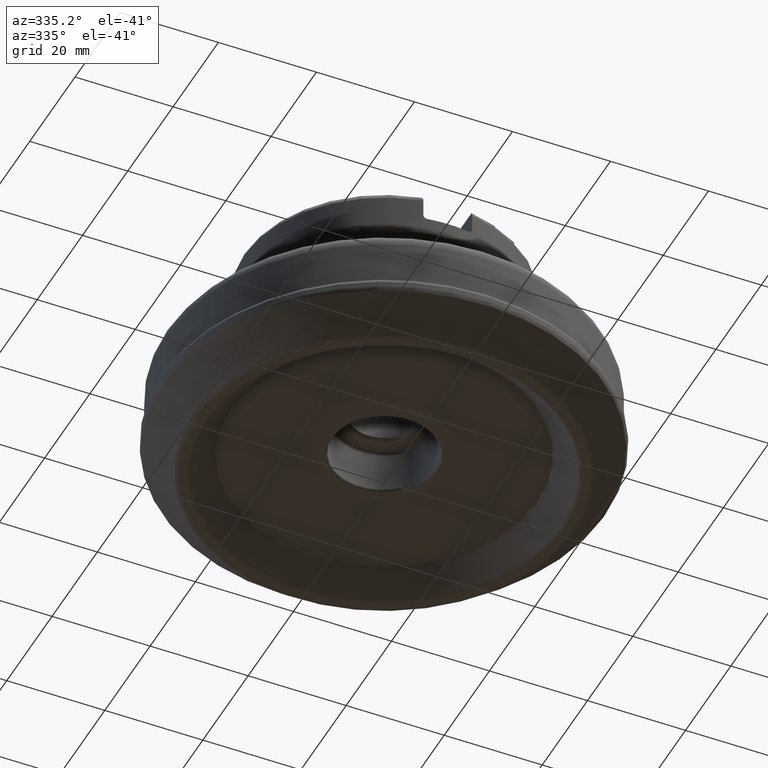
[diagram: clean part render]
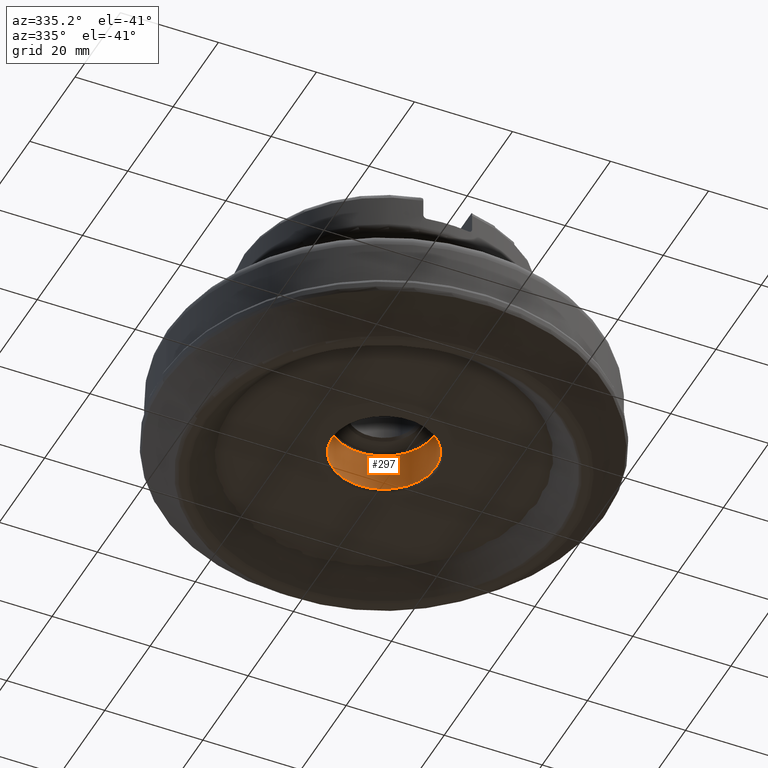
[diagram: same view with one face highlighted and labeled with its STEP entity id]
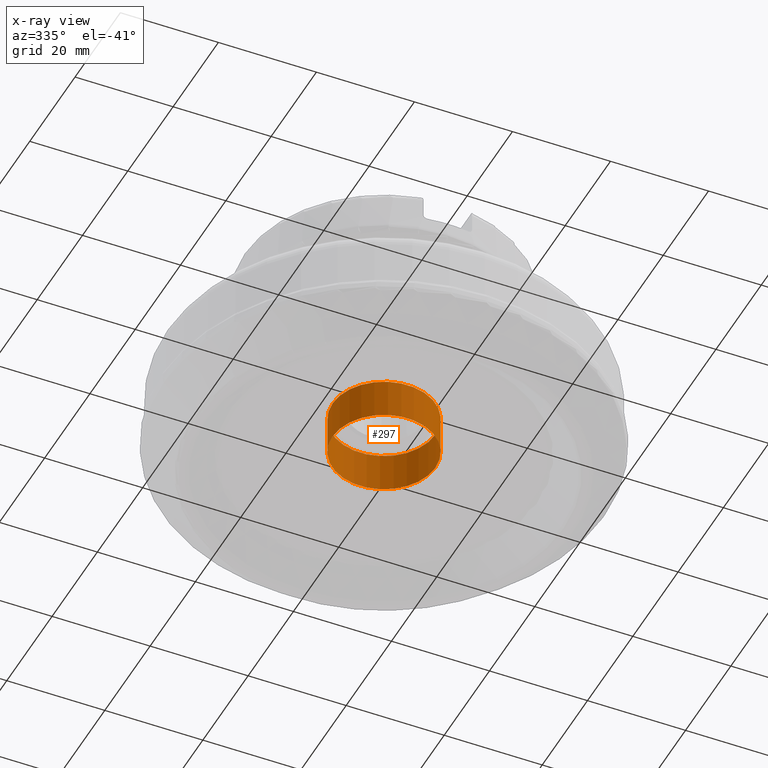
[diagram: x-ray of the same camera — body ghosted, the highlighted face saturated]
A machine part, auxiliary view. The second image highlights one B-rep face of the part: STEP entity #297.
The next image is the same camera in x-ray: the body ghosted, the highlighted face saturated — about 0% of this face is hidden behind the body in this view.
In plain terms, the highlighted cylindrical surface (bore or boss wall) has radius 10.5029 mm, axis along (-0, 0, -1).
Its self-contained STEP definition (entity closure, byte-faithful):
#204=CYLINDRICAL_SURFACE('',#1131,10.5029);
#297=ADVANCED_FACE('',(#381,#382),#204,.F.);
#381=FACE_BOUND('',#481,.T.);
#382=FACE_BOUND('',#482,.T.);
#481=EDGE_LOOP('',(#643));
#482=EDGE_LOOP('',(#644));
#643=ORIENTED_EDGE('',*,*,#931,.T.);
#644=ORIENTED_EDGE('',*,*,#932,.T.);
#837=VERTEX_POINT('',#1976);
#838=VERTEX_POINT('',#1978);
#931=EDGE_CURVE('',#837,#837,#1001,.T.);
#932=EDGE_CURVE('',#838,#838,#1002,.T.);
#1001=CIRCLE('',#1129,10.5029);
#1002=CIRCLE('',#1130,10.5029);
#1129=AXIS2_PLACEMENT_3D('',#1975,#1298,#1299);
#1130=AXIS2_PLACEMENT_3D('',#1977,#1300,#1301);
#1131=AXIS2_PLACEMENT_3D('',#1979,#1302,#1303);
#1298=DIRECTION('',(-1.17145536458252E-15,0.,-1.));
#1299=DIRECTION('',(-1.,0.,1.15616299610942E-15));
#1300=DIRECTION('',(1.17145536458252E-15,0.,1.));
#1301=DIRECTION('',(-1.,0.,1.15616299610942E-15));
#1302=DIRECTION('',(-1.17145536458252E-15,0.,-1.));
#1303=DIRECTION('',(-1.,0.,1.17145536458252E-15));
#1975=CARTESIAN_POINT('',(6.44916860174498E-15,0.,5.50526191328109));
#1976=CARTESIAN_POINT('',(-10.5029,0.,5.5052619132811));
#1977=CARTESIAN_POINT('',(1.59903657265514E-14,0.,13.65));
#1978=CARTESIAN_POINT('',(-10.5029,0.,13.65));
#1979=CARTESIAN_POINT('',(0.,0.,0.));